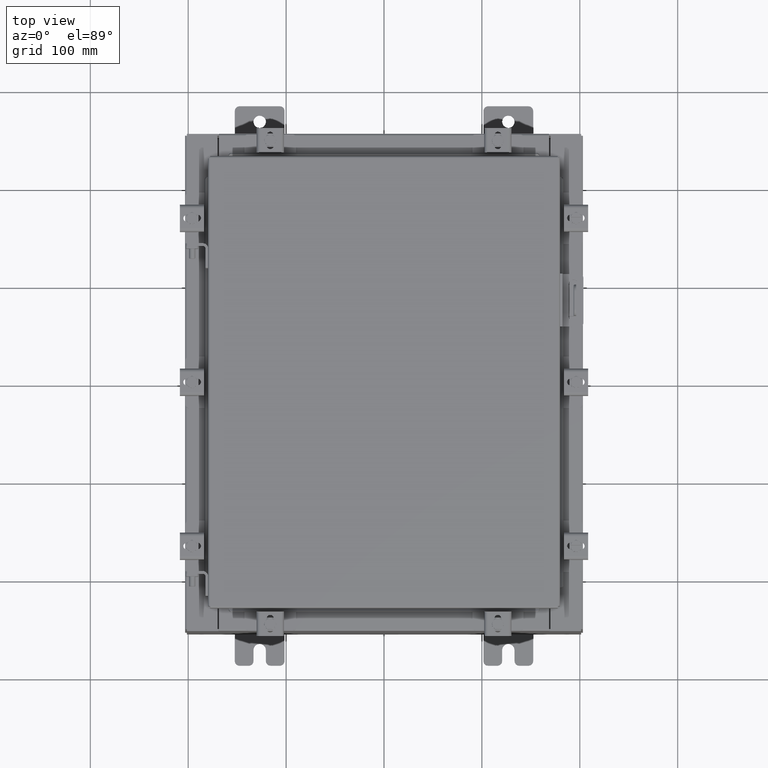
[diagram: clean part render]
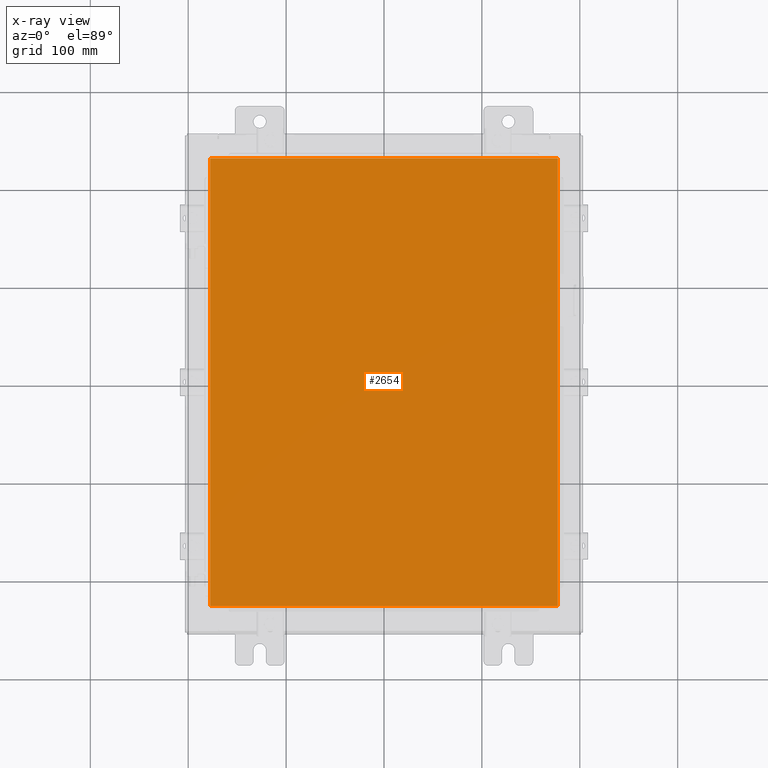
[diagram: x-ray — body ghosted, one internal face saturated and labeled with its STEP entity id]
A machine part, top view, then the same camera in x-ray: the body is ghosted and one INTERNAL B-rep face — a face not visible from any outside direction — is saturated and labeled: STEP entity #2654.
In plain terms, the highlighted planar face has unit normal (0, 0, -1).
Its self-contained STEP definition (entity closure, byte-faithful):
#535 = EDGE_CURVE ( 'NONE', #5586, #20424, #18690, .T. ) ;
#1557 = EDGE_CURVE ( 'NONE', #19244, #5586, #6916, .T. ) ;
#1710 = FACE_OUTER_BOUND ( 'NONE', #9747, .T. ) ;
#1872 = ORIENTED_EDGE ( 'NONE', *, *, #535, .F. ) ;
#2274 = VECTOR ( 'NONE', #20369, 39.37007874015748100 ) ;
#2581 = LINE ( 'NONE', #8289, #7732 ) ;
#2654 = ADVANCED_FACE ( 'NONE', ( #1710 ), #7023, .T. ) ;
#3156 = DIRECTION ( 'NONE',  ( 0.0000000000000000000, 1.000000000000000000, 0.0000000000000000000 ) ) ;
#3688 = ORIENTED_EDGE ( 'NONE', *, *, #15219, .F. ) ;
#4782 = VECTOR ( 'NONE', #7820, 39.37007874015748100 ) ;
#5018 = AXIS2_PLACEMENT_3D ( 'NONE', #14208, #20528, #18039 ) ;
#5231 = DIRECTION ( 'NONE',  ( -1.000000000000000000, -0.0000000000000000000, -0.0000000000000000000 ) ) ;
#5586 = VERTEX_POINT ( 'NONE', #18340 ) ;
#5879 = EDGE_CURVE ( 'NONE', #12462, #19244, #20387, .T. ) ;
#6886 = CARTESIAN_POINT ( 'NONE',  ( -6.990300000000003100, -9.006300000000003100, -0.07470000000000019700 ) ) ;
#6916 = LINE ( 'NONE', #15278, #2274 ) ;
#7023 = PLANE ( 'NONE',  #5018 ) ;
#7036 = VECTOR ( 'NONE', #5231, 39.37007874015748100 ) ;
#7732 = VECTOR ( 'NONE', #3156, 39.37007874015748100 ) ;
#7820 = DIRECTION ( 'NONE',  ( 1.000000000000000000, -0.0000000000000000000, -0.0000000000000000000 ) ) ;
#8289 = CARTESIAN_POINT ( 'NONE',  ( 6.990299999999996800, -9.006300000000003100, -0.07469999999999965600 ) ) ;
#9747 = EDGE_LOOP ( 'NONE', ( #3688, #1872, #11311, #11670 ) ) ;
#11311 = ORIENTED_EDGE ( 'NONE', *, *, #1557, .F. ) ;
#11670 = ORIENTED_EDGE ( 'NONE', *, *, #5879, .F. ) ;
#11861 = CARTESIAN_POINT ( 'NONE',  ( -6.990300000000003100, 9.006299999999996000, -0.07470000000000000300 ) ) ;
#12462 = VERTEX_POINT ( 'NONE', #13917 ) ;
#13917 = CARTESIAN_POINT ( 'NONE',  ( 6.990299999999996000, 9.006299999999996000, -0.07470000000000000300 ) ) ;
#14208 = CARTESIAN_POINT ( 'NONE',  ( 0.0000000000000000000, 0.0000000000000000000, -0.07470000000000000300 ) ) ;
#15219 = EDGE_CURVE ( 'NONE', #20424, #12462, #2581, .T. ) ;
#15278 = CARTESIAN_POINT ( 'NONE',  ( -6.990300000000003100, 9.006299999999996000, -0.07470000000000019700 ) ) ;
#15633 = CARTESIAN_POINT ( 'NONE',  ( 6.990299999999996800, 9.006299999999996000, -0.07469999999999965600 ) ) ;
#17571 = CARTESIAN_POINT ( 'NONE',  ( 6.990299999999996800, -9.006300000000003100, -0.07470000000000000300 ) ) ;
#18039 = DIRECTION ( 'NONE',  ( -1.000000000000000000, 0.0000000000000000000, -0.0000000000000000000 ) ) ;
#18340 = CARTESIAN_POINT ( 'NONE',  ( -6.990300000000002200, -9.006300000000003100, -0.07470000000000000300 ) ) ;
#18690 = LINE ( 'NONE', #6886, #4782 ) ;
#19244 = VERTEX_POINT ( 'NONE', #11861 ) ;
#20369 = DIRECTION ( 'NONE',  ( 0.0000000000000000000, -1.000000000000000000, 0.0000000000000000000 ) ) ;
#20387 = LINE ( 'NONE', #15633, #7036 ) ;
#20424 = VERTEX_POINT ( 'NONE', #17571 ) ;
#20528 = DIRECTION ( 'NONE',  ( 0.0000000000000000000, 0.0000000000000000000, -1.000000000000000000 ) ) ;